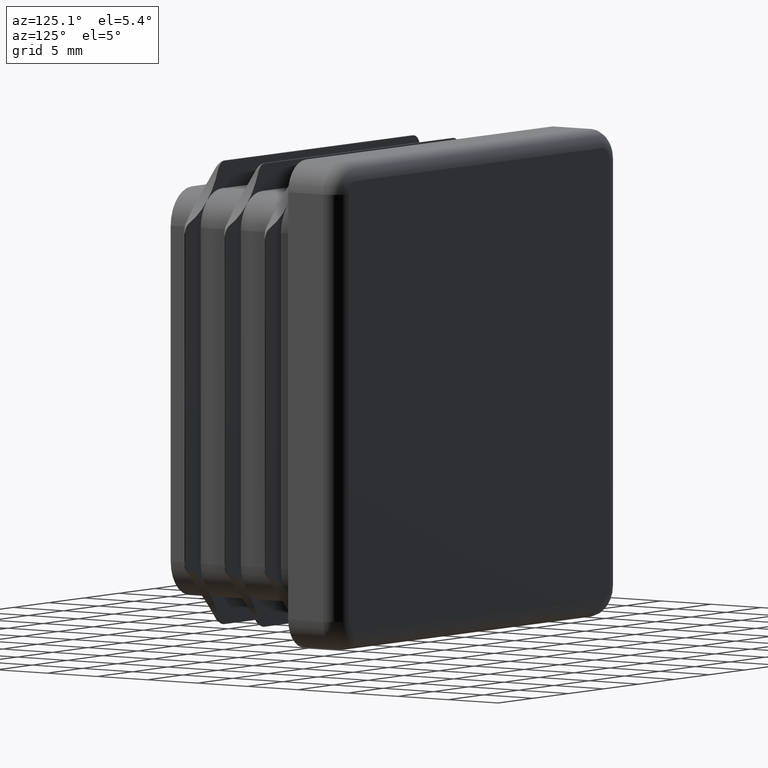
[diagram: clean part render]
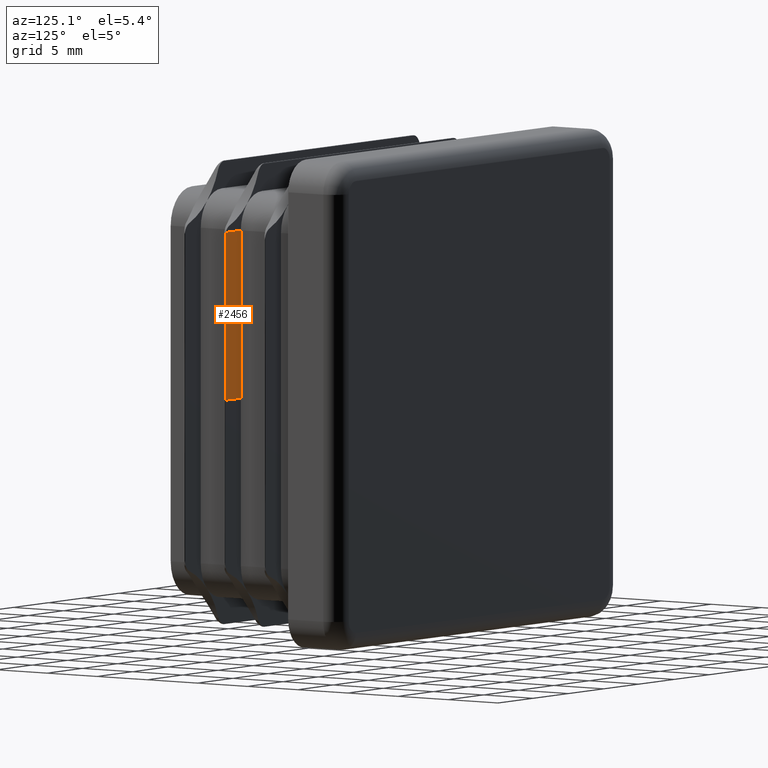
[diagram: same view with one face highlighted and labeled with its STEP entity id]
A machine part, auxiliary view. The second image highlights one B-rep face of the part: STEP entity #2456.
In plain terms, the highlighted planar face has unit normal (0, -1, -0).
Its self-contained STEP definition (entity closure, byte-faithful):
#144 = VECTOR ( 'NONE', #10289, 1000.000000000000000 ) ;
#498 = CARTESIAN_POINT ( 'NONE',  ( 18.00000000000009948, -7.000000000000000888, 13.33497561360502992 ) ) ;
#1404 = LINE ( 'NONE', #5218, #13974 ) ;
#1619 = LINE ( 'NONE', #4067, #144 ) ;
#1717 = VECTOR ( 'NONE', #15010, 1000.000000000000000 ) ;
#1907 = AXIS2_PLACEMENT_3D ( 'NONE', #498, #6902, #10101 ) ;
#2456 = ADVANCED_FACE ( 'NONE', ( #7563 ), #14023, .F. ) ;
#2939 = VERTEX_POINT ( 'NONE', #7823 ) ;
#3161 = EDGE_LOOP ( 'NONE', ( #4290, #3234, #14994, #6166, #5364 ) ) ;
#3212 = DIRECTION ( 'NONE',  ( 0.000000000000000000, 0.000000000000000000, -1.000000000000000000 ) ) ;
#3234 = ORIENTED_EDGE ( 'NONE', *, *, #7603, .T. ) ;
#3525 = VERTEX_POINT ( 'NONE', #10395 ) ;
#4067 = CARTESIAN_POINT ( 'NONE',  ( 16.75000000000004263, -7.000000000000000888, 0.000000000000000000 ) ) ;
#4155 = CARTESIAN_POINT ( 'NONE',  ( 16.75000000000003908, -7.000000000000000888, 13.74999999999999112 ) ) ;
#4290 = ORIENTED_EDGE ( 'NONE', *, *, #4564, .F. ) ;
#4564 = EDGE_CURVE ( 'NONE', #2939, #7442, #16879, .T. ) ;
#4965 = LINE ( 'NONE', #4155, #11636 ) ;
#5133 = VERTEX_POINT ( 'NONE', #8553 ) ;
#5218 = CARTESIAN_POINT ( 'NONE',  ( 18.95000000000004547, -7.000000000000000888, 13.74999999999999112 ) ) ;
#5364 = ORIENTED_EDGE ( 'NONE', *, *, #7354, .F. ) ;
#6127 = CARTESIAN_POINT ( 'NONE',  ( 16.75000000000003908, -7.000000000000000888, 13.74999999999999112 ) ) ;
#6166 = ORIENTED_EDGE ( 'NONE', *, *, #20140, .F. ) ;
#6353 = CARTESIAN_POINT ( 'NONE',  ( 18.95000000000004903, -7.000000000000000888, 0.000000000000000000 ) ) ;
#6902 = DIRECTION ( 'NONE',  ( -0.000000000000000000, -1.000000000000000000, -0.000000000000000000 ) ) ;
#7241 = CARTESIAN_POINT ( 'NONE',  ( 18.90981028720149126, -7.000000000000000888, 13.74999999999999467 ) ) ;
#7354 = EDGE_CURVE ( 'NONE', #7442, #5133, #20160, .T. ) ;
#7442 = VERTEX_POINT ( 'NONE', #7241 ) ;
#7563 = FACE_OUTER_BOUND ( 'NONE', #3161, .T. ) ;
#7603 = EDGE_CURVE ( 'NONE', #2939, #18623, #1404, .T. ) ;
#7823 = CARTESIAN_POINT ( 'NONE',  ( 18.95000000000004547, -7.000000000000000888, 13.64722551352510216 ) ) ;
#8553 = CARTESIAN_POINT ( 'NONE',  ( 16.75000000000000000, -7.000000000000000888, 13.74999999999999467 ) ) ;
#8902 = EDGE_CURVE ( 'NONE', #18623, #3525, #1619, .T. ) ;
#10076 = DIRECTION ( 'NONE',  ( 2.523234146875355998E-16, 0.000000000000000000, -1.000000000000000000 ) ) ;
#10101 = DIRECTION ( 'NONE',  ( 0.000000000000000000, 0.000000000000000000, -1.000000000000000000 ) ) ;
#10289 = DIRECTION ( 'NONE',  ( -1.000000000000000000, 0.000000000000000000, 0.000000000000000000 ) ) ;
#10395 = CARTESIAN_POINT ( 'NONE',  ( 16.75000000000000000, -7.000000000000000888, 0.000000000000000000 ) ) ;
#11636 = VECTOR ( 'NONE', #13346, 1000.000000000000000 ) ;
#13346 = DIRECTION ( 'NONE',  ( 2.523234146875355998E-16, 0.000000000000000000, -1.000000000000000000 ) ) ;
#13974 = VECTOR ( 'NONE', #10076, 1000.000000000000000 ) ;
#14023 = PLANE ( 'NONE',  #20121 ) ;
#14994 = ORIENTED_EDGE ( 'NONE', *, *, #8902, .T. ) ;
#15010 = DIRECTION ( 'NONE',  ( -1.000000000000000000, 0.000000000000000000, 0.000000000000000000 ) ) ;
#16385 = CARTESIAN_POINT ( 'NONE',  ( 16.75000000000003908, -7.000000000000000888, 13.74999999999999467 ) ) ;
#16879 = CIRCLE ( 'NONE', #1907, 0.9999999999999974465 ) ;
#18623 = VERTEX_POINT ( 'NONE', #6353 ) ;
#18916 = DIRECTION ( 'NONE',  ( 0.000000000000000000, -1.000000000000000000, -0.000000000000000000 ) ) ;
#20121 = AXIS2_PLACEMENT_3D ( 'NONE', #6127, #18916, #3212 ) ;
#20140 = EDGE_CURVE ( 'NONE', #5133, #3525, #4965, .T. ) ;
#20160 = LINE ( 'NONE', #16385, #1717 ) ;